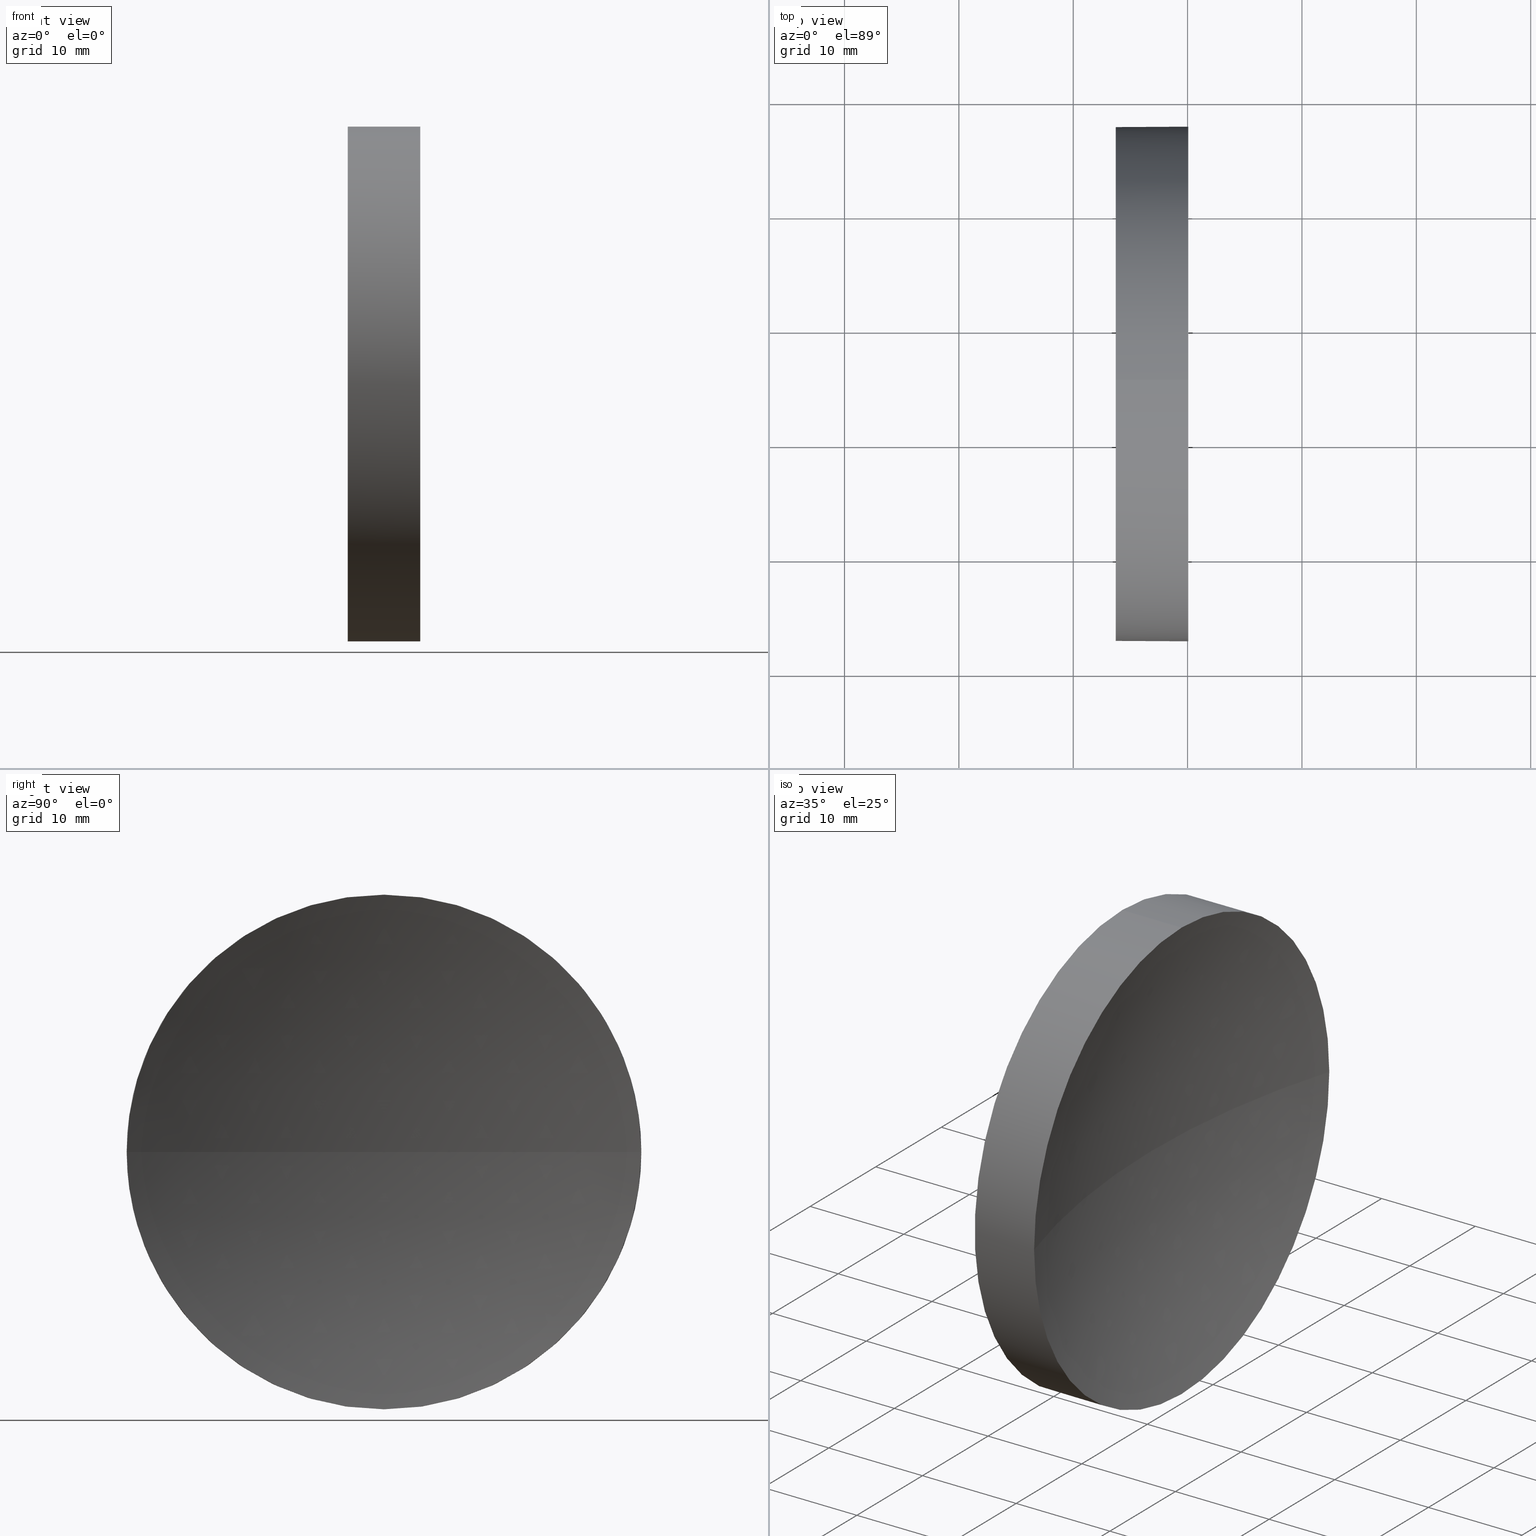
[diagram: canonical four-view strip — front | top / right | iso, engineering-drawing reading convention]
A machine part, canonical four-view strip (front | top / right | iso — engineering-drawing reading convention). The complete STEP part file that produces these views, byte-faithful:
ISO-10303-21;
HEADER;
FILE_DESCRIPTION (( 'STEP AP214' ),
    '1' );
FILE_NAME ('120053.STEP',
    '2019-06-18T01:21:33',
    ( '' ),
    ( '' ),
    'SwSTEP 2.0',
    'SolidWorks 2016',
    '' );
FILE_SCHEMA (( 'AUTOMOTIVE_DESIGN' ));
ENDSEC;

DATA;
#1 = EDGE_LOOP ( 'NONE', ( #21, #116, #108, #38 ) ) ;
#2 = CARTESIAN_POINT ( 'NONE',  ( 120.0570080214153000, 42.65563045701520700, -2.755455298081542800E-015 ) ) ;
#3 = MECHANICAL_DESIGN_GEOMETRIC_PRESENTATION_REPRESENTATION (  '', ( #68 ), #22 ) ;
#4 = CIRCLE ( 'NONE', #156, 22.49999999999997900 ) ;
#5 = VERTEX_POINT ( 'NONE', #124 ) ;
#6 = ADVANCED_BREP_SHAPE_REPRESENTATION ( '120053', ( #18, #134 ), #90 ) ;
#7 = AXIS2_PLACEMENT_3D ( 'NONE', #43, #115, #57 ) ;
#8 = VERTEX_POINT ( 'NONE', #137 ) ;
#9 = EDGE_LOOP ( 'NONE', ( #72, #52, #150, #87, #73 ) ) ;
#10 = DIRECTION ( 'NONE',  ( 0.0000000000000000000, 1.224646799147353200E-016, -1.000000000000000000 ) ) ;
#11 = EDGE_LOOP ( 'NONE', ( #85, #121, #83, #55, #184 ) ) ;
#12 = PRESENTATION_LAYER_ASSIGNMENT (  '', '', ( #68 ) ) ;
#13 = CARTESIAN_POINT ( 'NONE',  ( 113.7198928399500900, 65.15563045701519200, 22.49999999999997900 ) ) ;
#14 = DIRECTION ( 'NONE',  ( 0.0000000000000000000, 0.0000000000000000000, 1.000000000000000000 ) ) ;
#15 = EDGE_CURVE ( 'NONE', #5, #157, #79, .T. ) ;
#16 = CARTESIAN_POINT ( 'NONE',  ( 113.7198928399500900, 65.15563045701519200, 0.0000000000000000000 ) ) ;
#17 = CARTESIAN_POINT ( 'NONE',  ( 113.7198928399500900, 65.15563045701519200, 0.0000000000000000000 ) ) ;
#18 = MANIFOLD_SOLID_BREP ( '��ת1', #114 ) ;
#19 = CARTESIAN_POINT ( 'NONE',  ( 105.6218371238301200, 65.15563045701519200, 0.0000000000000000000 ) ) ;
#20 = SPHERICAL_SURFACE ( 'NONE', #91, 77.51999999999999600 ) ;
#21 = ORIENTED_EDGE ( 'NONE', *, *, #33, .F. ) ;
#22 =( GEOMETRIC_REPRESENTATION_CONTEXT ( 3 ) GLOBAL_UNCERTAINTY_ASSIGNED_CONTEXT ( ( #118 ) ) GLOBAL_UNIT_ASSIGNED_CONTEXT ( ( #94, #148, #77 ) ) REPRESENTATION_CONTEXT ( 'NONE', 'WORKASPACE' ) );
#23 = COLOUR_RGB ( '',1.000000000000000000, 1.000000000000000000, 1.000000000000000000 ) ;
#24 = CARTESIAN_POINT ( 'NONE',  ( 194.2398928399500700, 65.15563045701517800, 0.0000000000000000000 ) ) ;
#25 = UNCERTAINTY_MEASURE_WITH_UNIT (LENGTH_MEASURE( 1.000000000000000100E-005 ), #161, 'distance_accuracy_value', 'NONE');
#26 = DIRECTION ( 'NONE',  ( 1.000000000000000000, 0.0000000000000000000, 0.0000000000000000000 ) ) ;
#27 = AXIS2_PLACEMENT_3D ( 'NONE', #16, #140, #58 ) ;
#28 = DIRECTION ( 'NONE',  ( 0.0000000000000000000, 0.0000000000000000000, 1.000000000000000000 ) ) ;
#29 = DIRECTION ( 'NONE',  ( -1.000000000000000000, -0.0000000000000000000, -0.0000000000000000000 ) ) ;
#30 = DIRECTION ( 'NONE',  ( 0.0000000000000000000, 0.0000000000000000000, 1.000000000000000000 ) ) ;
#31 = PRODUCT_DEFINITION ( 'δ֪', '', #105, #40 ) ;
#32 = PRESENTATION_STYLE_ASSIGNMENT (( #119 ) ) ;
#33 = EDGE_CURVE ( 'NONE', #59, #157, #98, .T. ) ;
#34 =( NAMED_UNIT ( * ) SI_UNIT ( $, .STERADIAN. ) SOLID_ANGLE_UNIT ( ) );
#35 = PRODUCT_CONTEXT ( 'NONE', #159, 'mechanical' ) ;
#36 =( NAMED_UNIT ( * ) PLANE_ANGLE_UNIT ( ) SI_UNIT ( $, .RADIAN. ) );
#37 = VECTOR ( 'NONE', #45, 1000.000000000000000 ) ;
#38 = ORIENTED_EDGE ( 'NONE', *, *, #15, .T. ) ;
#39 = PRODUCT ( '120053', '120053', '', ( #35 ) ) ;
#40 = PRODUCT_DEFINITION_CONTEXT ( 'detailed design', #103, 'design' ) ;
#41 = ADVANCED_FACE ( 'NONE', ( #46 ), #163, .T. ) ;
#42 = VERTEX_POINT ( 'NONE', #171 ) ;
#43 = CARTESIAN_POINT ( 'NONE',  ( 194.2398928399500700, 65.15563045701517800, 0.0000000000000000000 ) ) ;
#44 = AXIS2_PLACEMENT_3D ( 'NONE', #127, #153, #30 ) ;
#45 = DIRECTION ( 'NONE',  ( -1.000000000000000000, -0.0000000000000000000, -0.0000000000000000000 ) ) ;
#46 = FACE_OUTER_BOUND ( 'NONE', #9, .T. ) ;
#47 = EDGE_LOOP ( 'NONE', ( #50, #120, #125, #164 ) ) ;
#48 = CARTESIAN_POINT ( 'NONE',  ( 120.0570080214153000, 65.15563045701519200, 0.0000000000000000000 ) ) ;
#49 = APPLICATION_PROTOCOL_DEFINITION ( 'draft international standard', 'automotive_design', 1998, #159 ) ;
#50 = ORIENTED_EDGE ( 'NONE', *, *, #89, .F. ) ;
#51 = PRESENTATION_LAYER_ASSIGNMENT (  '', '', ( #99 ) ) ;
#52 = ORIENTED_EDGE ( 'NONE', *, *, #144, .T. ) ;
#53 = ADVANCED_FACE ( 'NONE', ( #67 ), #93, .F. ) ;
#54 = SURFACE_SIDE_STYLE ('',( #149 ) ) ;
#55 = ORIENTED_EDGE ( 'NONE', *, *, #162, .F. ) ;
#56 = DIRECTION ( 'NONE',  ( 0.0000000000000000000, 1.000000000000000000, 1.224646799147353200E-016 ) ) ;
#57 = DIRECTION ( 'NONE',  ( 0.0000000000000000000, 1.000000000000000000, 0.0000000000000000000 ) ) ;
#58 = DIRECTION ( 'NONE',  ( 0.0000000000000000000, 0.0000000000000000000, 1.000000000000000000 ) ) ;
#59 = VERTEX_POINT ( 'NONE', #2 ) ;
#60 = DIRECTION ( 'NONE',  ( -1.000000000000000000, -0.0000000000000000000, -0.0000000000000000000 ) ) ;
#61 = COLOUR_RGB ( '',1.000000000000000000, 1.000000000000000000, 1.000000000000000000 ) ;
#62 = SPHERICAL_SURFACE ( 'NONE', #7, 77.51999999999999600 ) ;
#63 = ADVANCED_FACE ( 'NONE', ( #131 ), #135, .T. ) ;
#64 = FILL_AREA_STYLE ('',( #151 ) ) ;
#65 = CIRCLE ( 'NONE', #44, 22.49999999999997900 ) ;
#66 = DIRECTION ( 'NONE',  ( 0.0000000000000000000, 0.0000000000000000000, 1.000000000000000000 ) ) ;
#67 = FACE_OUTER_BOUND ( 'NONE', #160, .T. ) ;
#68 = STYLED_ITEM ( 'NONE', ( #146 ), #18 ) ;
#69 =( NAMED_UNIT ( * ) PLANE_ANGLE_UNIT ( ) SI_UNIT ( $, .RADIAN. ) );
#70 = LINE ( 'NONE', #82, #37 ) ;
#71 = FACE_OUTER_BOUND ( 'NONE', #47, .T. ) ;
#72 = ORIENTED_EDGE ( 'NONE', *, *, #180, .F. ) ;
#73 = ORIENTED_EDGE ( 'NONE', *, *, #169, .F. ) ;
#74 = EDGE_CURVE ( 'NONE', #5, #42, #65, .T. ) ;
#75 = CARTESIAN_POINT ( 'NONE',  ( 105.6218371238301200, 65.15563045701519200, 0.0000000000000000000 ) ) ;
#76 = VERTEX_POINT ( 'NONE', #13 ) ;
#77 =( NAMED_UNIT ( * ) SI_UNIT ( $, .STERADIAN. ) SOLID_ANGLE_UNIT ( ) );
#78 = PRODUCT_DEFINITION_SHAPE ( 'NONE', 'NONE',  #31 ) ;
#79 = CIRCLE ( 'NONE', #175, 77.51999999999998200 ) ;
#80 = DIRECTION ( 'NONE',  ( 0.0000000000000000000, 0.0000000000000000000, -1.000000000000000000 ) ) ;
#81 = DIRECTION ( 'NONE',  ( 0.0000000000000000000, 0.0000000000000000000, 1.000000000000000000 ) ) ;
#82 = CARTESIAN_POINT ( 'NONE',  ( 105.6218371238301200, 65.15563045701519200, 22.49999999999997900 ) ) ;
#83 = ORIENTED_EDGE ( 'NONE', *, *, #102, .F. ) ;
#84 = MECHANICAL_DESIGN_GEOMETRIC_PRESENTATION_REPRESENTATION (  '', ( #99 ), #168 ) ;
#85 = ORIENTED_EDGE ( 'NONE', *, *, #74, .T. ) ;
#86 = AXIS2_PLACEMENT_3D ( 'NONE', #75, #152, #122 ) ;
#87 = ORIENTED_EDGE ( 'NONE', *, *, #162, .T. ) ;
#88 = DIRECTION ( 'NONE',  ( 1.000000000000000000, 0.0000000000000000000, 0.0000000000000000000 ) ) ;
#89 = EDGE_CURVE ( 'NONE', #59, #92, #113, .T. ) ;
#90 =( GEOMETRIC_REPRESENTATION_CONTEXT ( 3 ) GLOBAL_UNCERTAINTY_ASSIGNED_CONTEXT ( ( #111 ) ) GLOBAL_UNIT_ASSIGNED_CONTEXT ( ( #95, #69, #34 ) ) REPRESENTATION_CONTEXT ( 'NONE', 'WORKASPACE' ) );
#91 = AXIS2_PLACEMENT_3D ( 'NONE', #112, #185, #110 ) ;
#92 = VERTEX_POINT ( 'NONE', #126 ) ;
#93 = PLANE ( 'NONE',  #154 ) ;
#94 =( LENGTH_UNIT ( ) NAMED_UNIT ( * ) SI_UNIT ( .MILLI., .METRE. ) );
#95 =( LENGTH_UNIT ( ) NAMED_UNIT ( * ) SI_UNIT ( .MILLI., .METRE. ) );
#96 = CARTESIAN_POINT ( 'NONE',  ( 113.7198928399500900, 65.15563045701517800, 0.0000000000000000000 ) ) ;
#97 = FILL_AREA_STYLE_COLOUR ( '', #61 ) ;
#98 = CIRCLE ( 'NONE', #167, 77.51999999999999600 ) ;
#99 = STYLED_ITEM ( 'NONE', ( #32 ), #6 ) ;
#100 = DIRECTION ( 'NONE',  ( 0.0000000000000000000, 0.0000000000000000000, 1.000000000000000000 ) ) ;
#101 =( NAMED_UNIT ( * ) SI_UNIT ( $, .STERADIAN. ) SOLID_ANGLE_UNIT ( ) );
#102 = EDGE_CURVE ( 'NONE', #76, #8, #165, .T. ) ;
#103 = APPLICATION_CONTEXT ( 'automotive_design' ) ;
#104 = VECTOR ( 'NONE', #183, 1000.000000000000000 ) ;
#105 = PRODUCT_DEFINITION_FORMATION_WITH_SPECIFIED_SOURCE ( '�κ�', '', #39, .NOT_KNOWN. ) ;
#106 = CARTESIAN_POINT ( 'NONE',  ( 194.2398928399500700, 65.15563045701517800, 0.0000000000000000000 ) ) ;
#107 = CIRCLE ( 'NONE', #181, 22.49999999999997900 ) ;
#108 = ORIENTED_EDGE ( 'NONE', *, *, #74, .F. ) ;
#109 = DIRECTION ( 'NONE',  ( 1.000000000000000000, 0.0000000000000000000, 0.0000000000000000000 ) ) ;
#110 = DIRECTION ( 'NONE',  ( 0.0000000000000000000, 1.000000000000000000, 0.0000000000000000000 ) ) ;
#111 = UNCERTAINTY_MEASURE_WITH_UNIT (LENGTH_MEASURE( 1.000000000000000100E-005 ), #95, 'distance_accuracy_value', 'NONE');
#112 = CARTESIAN_POINT ( 'NONE',  ( 194.2398928399500700, 65.15563045701517800, 0.0000000000000000000 ) ) ;
#113 = CIRCLE ( 'NONE', #133, 22.49999999999997900 ) ;
#114 = CLOSED_SHELL ( 'NONE', ( #63, #132, #178, #41, #53 ) ) ;
#115 = DIRECTION ( 'NONE',  ( 0.0000000000000000000, 0.0000000000000000000, -1.000000000000000000 ) ) ;
#116 = ORIENTED_EDGE ( 'NONE', *, *, #144, .F. ) ;
#117 = FILL_AREA_STYLE ('',( #97 ) ) ;
#118 = UNCERTAINTY_MEASURE_WITH_UNIT (LENGTH_MEASURE( 1.000000000000000100E-005 ), #94, 'distance_accuracy_value', 'NONE');
#119 = SURFACE_STYLE_USAGE ( .BOTH. , #174 ) ;
#120 = ORIENTED_EDGE ( 'NONE', *, *, #33, .T. ) ;
#121 = ORIENTED_EDGE ( 'NONE', *, *, #180, .T. ) ;
#122 = DIRECTION ( 'NONE',  ( 0.0000000000000000000, 0.0000000000000000000, 1.000000000000000000 ) ) ;
#123 = PRODUCT_RELATED_PRODUCT_CATEGORY ( 'part', '', ( #39 ) ) ;
#124 = CARTESIAN_POINT ( 'NONE',  ( 120.0570080214153000, 87.65563045701519200, 0.0000000000000000000 ) ) ;
#125 = ORIENTED_EDGE ( 'NONE', *, *, #15, .F. ) ;
#126 = CARTESIAN_POINT ( 'NONE',  ( 120.0570080214153000, 65.15563045701519200, 22.49999999999997900 ) ) ;
#127 = CARTESIAN_POINT ( 'NONE',  ( 120.0570080214153000, 65.15563045701519200, 0.0000000000000000000 ) ) ;
#128 = CARTESIAN_POINT ( 'NONE',  ( 116.7198928399500900, 65.15563045701517800, 0.0000000000000000000 ) ) ;
#129 = ORIENTED_EDGE ( 'NONE', *, *, #169, .T. ) ;
#130 = DIRECTION ( 'NONE',  ( -1.000000000000000000, -0.0000000000000000000, -0.0000000000000000000 ) ) ;
#131 = FACE_OUTER_BOUND ( 'NONE', #11, .T. ) ;
#132 = ADVANCED_FACE ( 'NONE', ( #71 ), #20, .F. ) ;
#133 = AXIS2_PLACEMENT_3D ( 'NONE', #172, #155, #28 ) ;
#134 = AXIS2_PLACEMENT_3D ( 'NONE', #158, #100, #88 ) ;
#135 = CYLINDRICAL_SURFACE ( 'NONE', #147, 22.49999999999997900 ) ;
#136 = DIRECTION ( 'NONE',  ( 0.0000000000000000000, 0.0000000000000000000, 1.000000000000000000 ) ) ;
#137 = CARTESIAN_POINT ( 'NONE',  ( 113.7198928399500900, 65.15563045701519200, -22.49999999999997900 ) ) ;
#138 = CARTESIAN_POINT ( 'NONE',  ( 120.0570080214153000, 65.15563045701519200, 0.0000000000000000000 ) ) ;
#139 = AXIS2_PLACEMENT_3D ( 'NONE', #17, #130, #81 ) ;
#140 = DIRECTION ( 'NONE',  ( -1.000000000000000000, -0.0000000000000000000, -0.0000000000000000000 ) ) ;
#141 = SURFACE_STYLE_FILL_AREA ( #117 ) ;
#142 = FACE_OUTER_BOUND ( 'NONE', #1, .T. ) ;
#143 = DIRECTION ( 'NONE',  ( 0.0000000000000000000, 0.0000000000000000000, 1.000000000000000000 ) ) ;
#144 = EDGE_CURVE ( 'NONE', #42, #59, #107, .T. ) ;
#145 = APPLICATION_PROTOCOL_DEFINITION ( 'draft international standard', 'automotive_design', 1998, #103 ) ;
#146 = PRESENTATION_STYLE_ASSIGNMENT (( #182 ) ) ;
#147 = AXIS2_PLACEMENT_3D ( 'NONE', #19, #170, #143 ) ;
#148 =( NAMED_UNIT ( * ) PLANE_ANGLE_UNIT ( ) SI_UNIT ( $, .RADIAN. ) );
#149 = SURFACE_STYLE_FILL_AREA ( #64 ) ;
#150 = ORIENTED_EDGE ( 'NONE', *, *, #89, .T. ) ;
#151 = FILL_AREA_STYLE_COLOUR ( '', #23 ) ;
#152 = DIRECTION ( 'NONE',  ( -1.000000000000000000, -0.0000000000000000000, -0.0000000000000000000 ) ) ;
#153 = DIRECTION ( 'NONE',  ( -1.000000000000000000, -0.0000000000000000000, -0.0000000000000000000 ) ) ;
#154 = AXIS2_PLACEMENT_3D ( 'NONE', #96, #109, #80 ) ;
#155 = DIRECTION ( 'NONE',  ( -1.000000000000000000, -0.0000000000000000000, -0.0000000000000000000 ) ) ;
#156 = AXIS2_PLACEMENT_3D ( 'NONE', #48, #60, #66 ) ;
#157 = VERTEX_POINT ( 'NONE', #128 ) ;
#158 = CARTESIAN_POINT ( 'NONE',  ( 0.0000000000000000000, 0.0000000000000000000, 0.0000000000000000000 ) ) ;
#159 = APPLICATION_CONTEXT ( 'automotive_design' ) ;
#160 = EDGE_LOOP ( 'NONE', ( #166, #129 ) ) ;
#161 =( LENGTH_UNIT ( ) NAMED_UNIT ( * ) SI_UNIT ( .MILLI., .METRE. ) );
#162 = EDGE_CURVE ( 'NONE', #92, #76, #70, .T. ) ;
#163 = CYLINDRICAL_SURFACE ( 'NONE', #86, 22.49999999999997900 ) ;
#164 = ORIENTED_EDGE ( 'NONE', *, *, #173, .F. ) ;
#165 = CIRCLE ( 'NONE', #139, 22.49999999999997900 ) ;
#166 = ORIENTED_EDGE ( 'NONE', *, *, #102, .T. ) ;
#167 = AXIS2_PLACEMENT_3D ( 'NONE', #24, #10, #56 ) ;
#168 =( GEOMETRIC_REPRESENTATION_CONTEXT ( 3 ) GLOBAL_UNCERTAINTY_ASSIGNED_CONTEXT ( ( #25 ) ) GLOBAL_UNIT_ASSIGNED_CONTEXT ( ( #161, #36, #101 ) ) REPRESENTATION_CONTEXT ( 'NONE', 'WORKASPACE' ) );
#169 = EDGE_CURVE ( 'NONE', #8, #76, #179, .T. ) ;
#170 = DIRECTION ( 'NONE',  ( -1.000000000000000000, -0.0000000000000000000, -0.0000000000000000000 ) ) ;
#171 = CARTESIAN_POINT ( 'NONE',  ( 120.0570080214153000, 65.15563045701519200, -22.49999999999997900 ) ) ;
#172 = CARTESIAN_POINT ( 'NONE',  ( 120.0570080214153000, 65.15563045701519200, 0.0000000000000000000 ) ) ;
#173 = EDGE_CURVE ( 'NONE', #92, #5, #4, .T. ) ;
#174 = SURFACE_SIDE_STYLE ('',( #141 ) ) ;
#175 = AXIS2_PLACEMENT_3D ( 'NONE', #106, #136, #26 ) ;
#176 = SHAPE_DEFINITION_REPRESENTATION ( #78, #6 ) ;
#177 = LINE ( 'NONE', #186, #104 ) ;
#178 = ADVANCED_FACE ( 'NONE', ( #142 ), #62, .F. ) ;
#179 = CIRCLE ( 'NONE', #27, 22.49999999999997900 ) ;
#180 = EDGE_CURVE ( 'NONE', #42, #8, #177, .T. ) ;
#181 = AXIS2_PLACEMENT_3D ( 'NONE', #138, #29, #14 ) ;
#182 = SURFACE_STYLE_USAGE ( .BOTH. , #54 ) ;
#183 = DIRECTION ( 'NONE',  ( -1.000000000000000000, -0.0000000000000000000, -0.0000000000000000000 ) ) ;
#184 = ORIENTED_EDGE ( 'NONE', *, *, #173, .T. ) ;
#185 = DIRECTION ( 'NONE',  ( 0.0000000000000000000, 0.0000000000000000000, -1.000000000000000000 ) ) ;
#186 = CARTESIAN_POINT ( 'NONE',  ( 105.6218371238301200, 65.15563045701519200, -22.49999999999997900 ) ) ;
ENDSEC;
END-ISO-10303-21;
